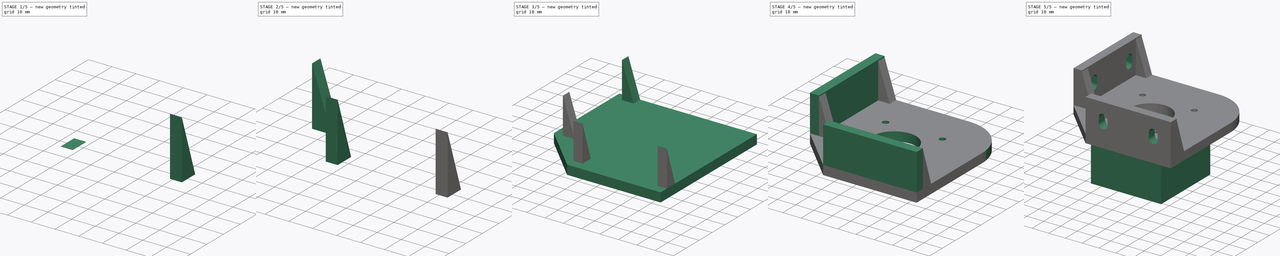
[diagram: build sequence overview — one tinted view per stage of 5, left to right]
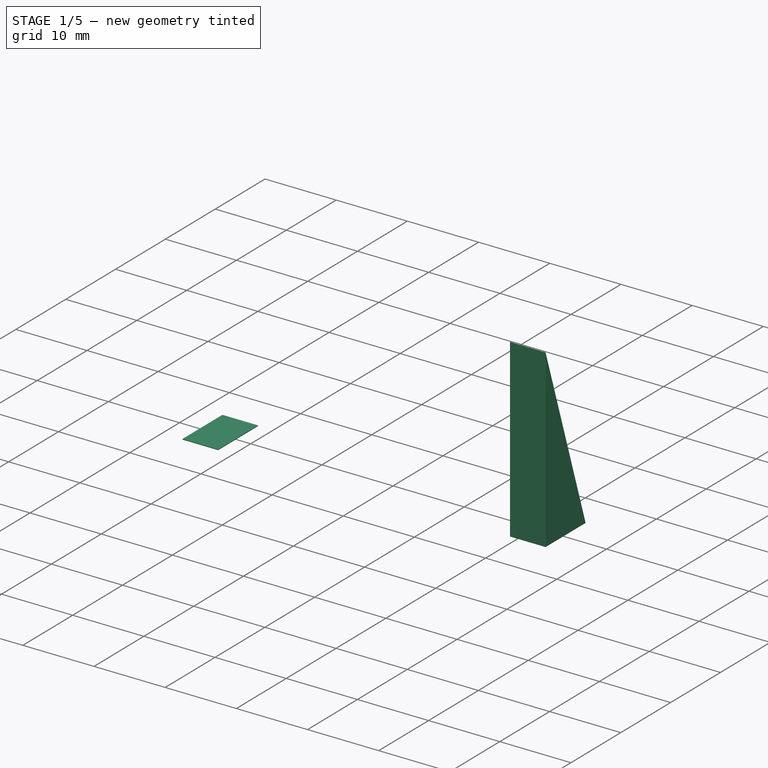
[diagram: stage 1 of 5 — iso view after this stage's code; geometry added in this stage tinted green]
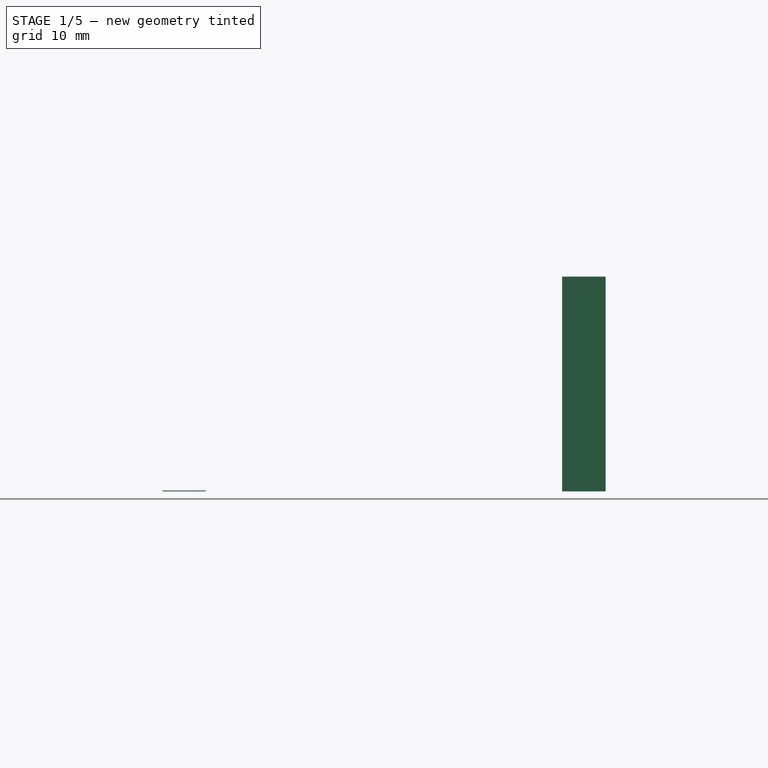
[diagram: stage 1 of 5 — front view after this stage's code; geometry added in this stage tinted green]
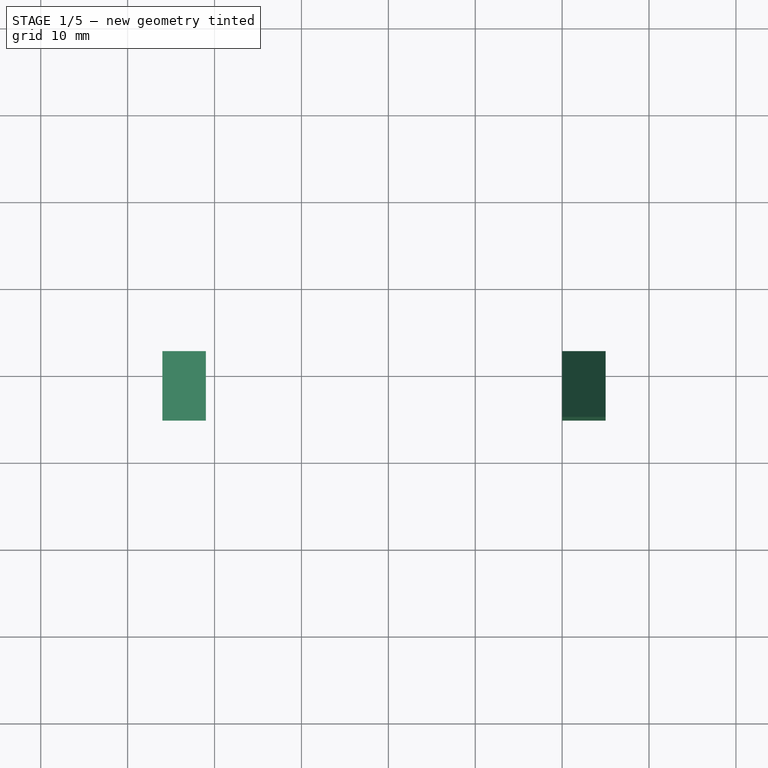
[diagram: stage 1 of 5 — top view after this stage's code; geometry added in this stage tinted green]
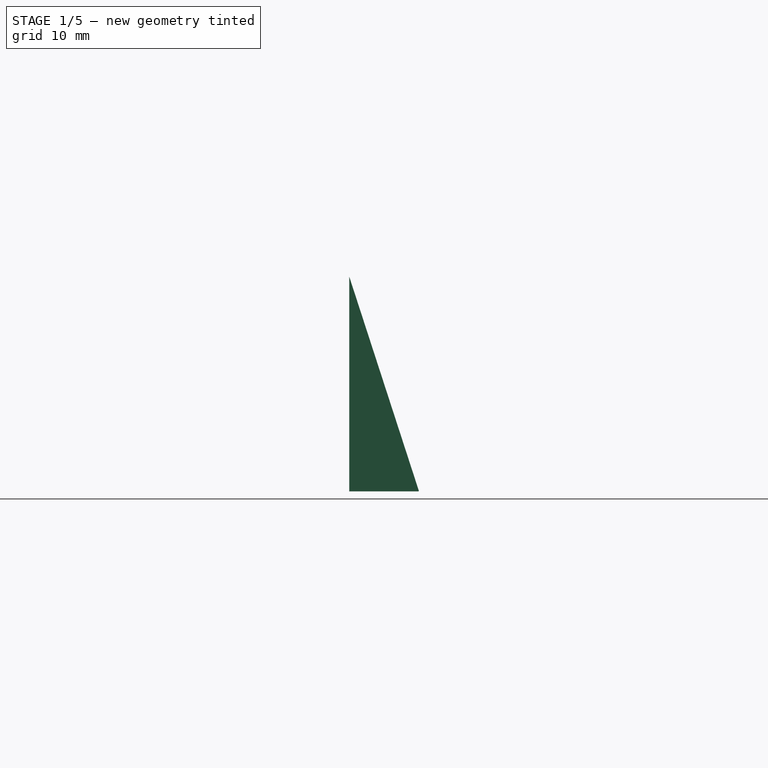
[diagram: stage 1 of 5 — right view after this stage's code; geometry added in this stage tinted green]
FCSTD DOCUMENT  (FreeCAD 0.16R6706 (Git))
Label: NemaMount
License: All rights reserved
LicenseURL: http://en.wikipedia.org/wiki/All_rights_reserved
objects: Sketcher::SketchObject×5, Part::Box×5, PartDesign::Draft×4, PartDesign::Pocket×3, PartDesign::Pad×2, PartDesign::Fillet×1
note: 25 computed .brp shape members not serialized (recipe doc carries the construction recipe); baked Part::Feature solids carry a one-line shape summary decoded from their .brp

FEATURE [Part::Box] Box003  label="support002"
  Height = 0.1
  Length = 5
  Placement = pos=(24,4.9,0) rot=(0,0,1;0rad)
  Width = 8
FEATURE [Part::Box] Box004  label="support003"
  Height = 0.1
  Length = 5
  Placement = pos=(70,4.9,0) rot=(0,0,1;0rad)
  Width = 8
FEATURE [PartDesign::Draft] Draft003
  Angle = 72
  Base = -> Box004 [Face6]
  NeutralPlane = -> Box004 [Face4]
  Placement = pos=(70,4.9,0) rot=(0,0,1;0rad)
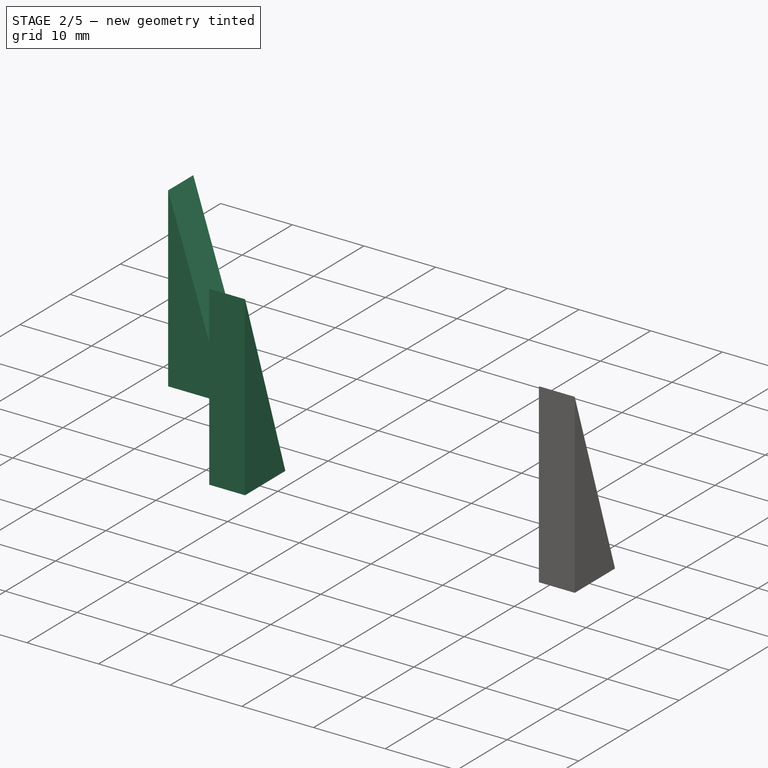
[diagram: stage 2 of 5 — iso view after this stage's code; geometry added in this stage tinted green]
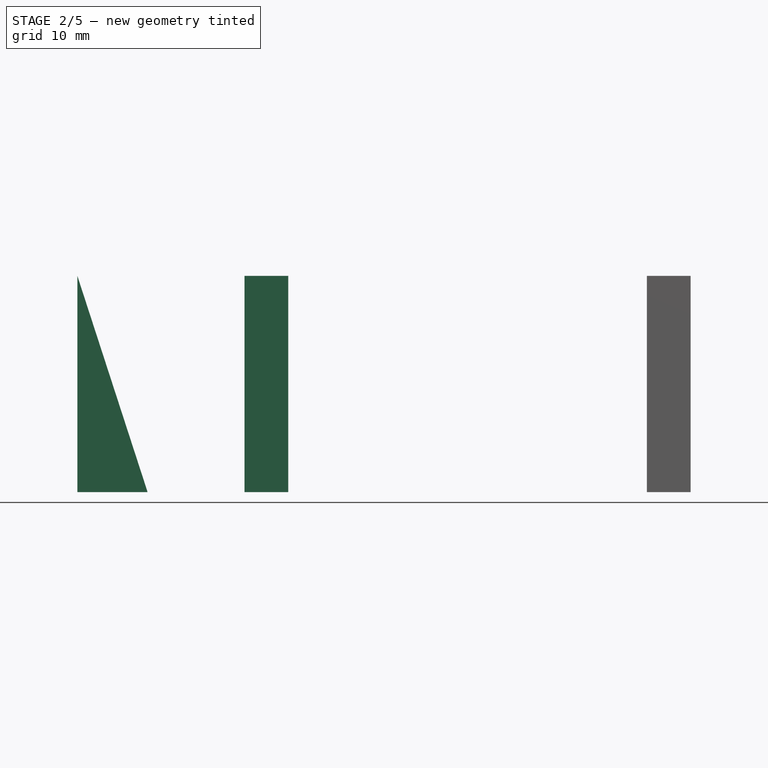
[diagram: stage 2 of 5 — front view after this stage's code; geometry added in this stage tinted green]
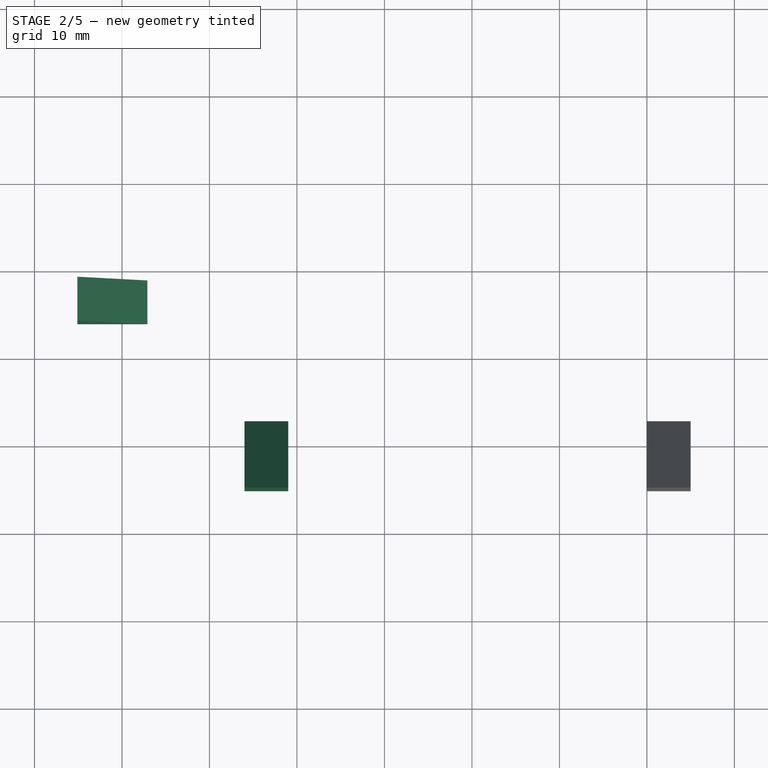
[diagram: stage 2 of 5 — top view after this stage's code; geometry added in this stage tinted green]
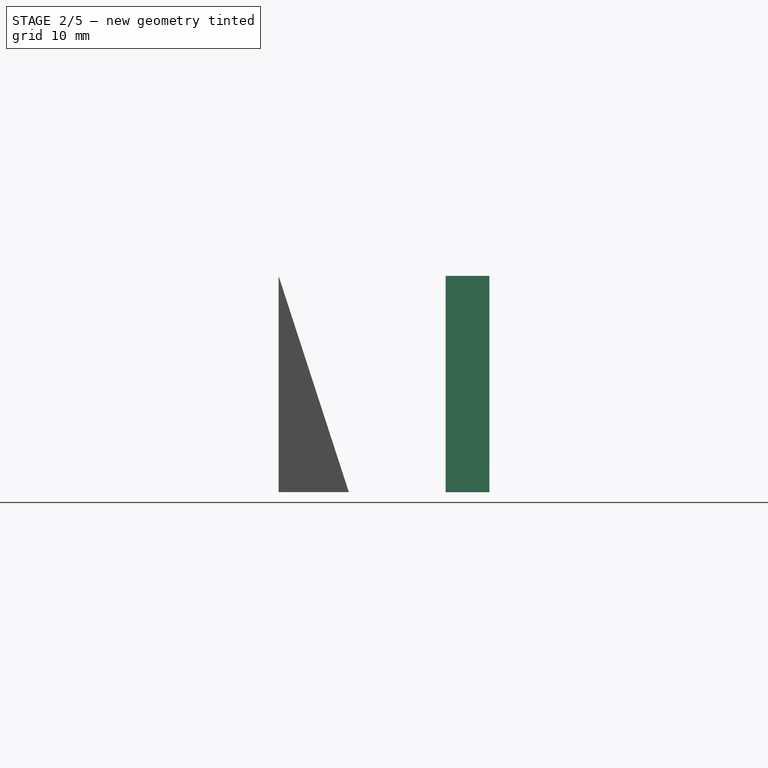
[diagram: stage 2 of 5 — right view after this stage's code; geometry added in this stage tinted green]
FEATURE [Part::Box] Box002  label="support001"
  Height = 0.1
  Length = 8
  Placement = pos=(4.9,24,0) rot=(0,0,1;0rad)
  Width = 5
FEATURE [PartDesign::Draft] Draft001
  Angle = 72
  Base = -> Box002 [Face6]
  NeutralPlane = -> Box002 [Face2]
  Placement = pos=(4.9,24,0) rot=(0,0,1;0rad)
FEATURE [PartDesign::Draft] Draft002
  Angle = 72
  Base = -> Box003 [Face6]
  NeutralPlane = -> Box003 [Face4]
  Placement = pos=(24,4.9,0) rot=(0,0,1;0rad)
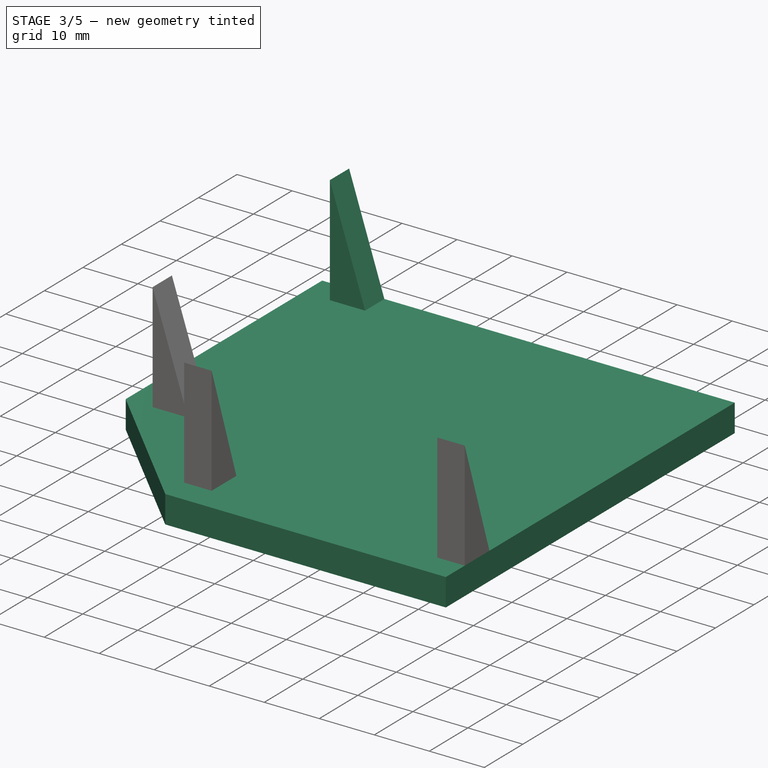
[diagram: stage 3 of 5 — iso view after this stage's code; geometry added in this stage tinted green]
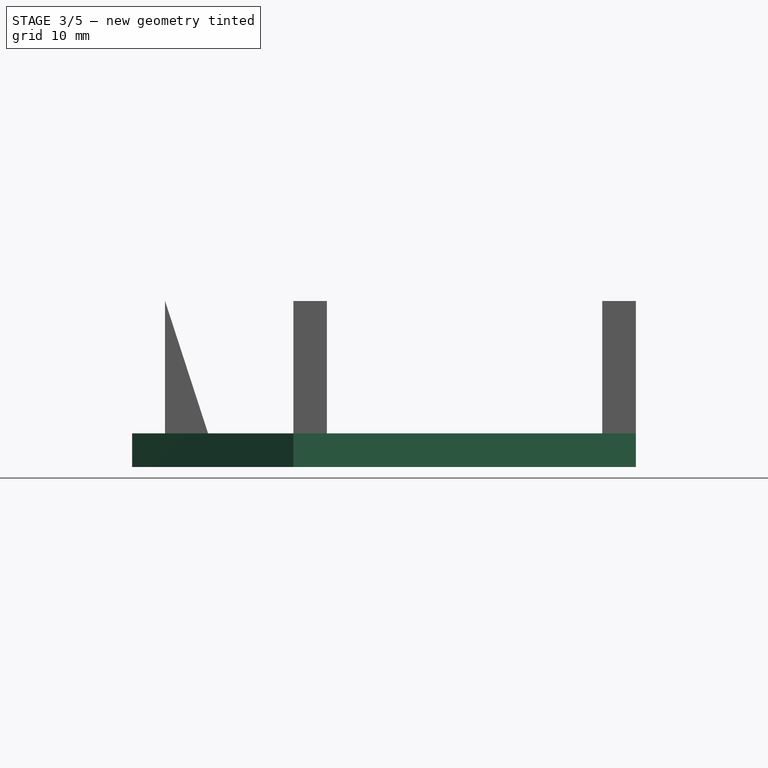
[diagram: stage 3 of 5 — front view after this stage's code; geometry added in this stage tinted green]
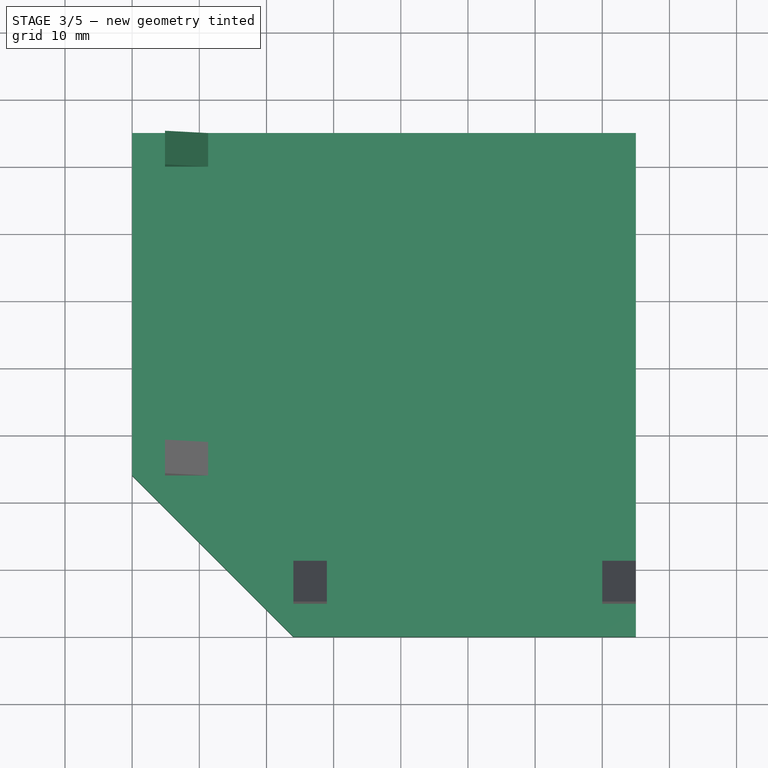
[diagram: stage 3 of 5 — top view after this stage's code; geometry added in this stage tinted green]
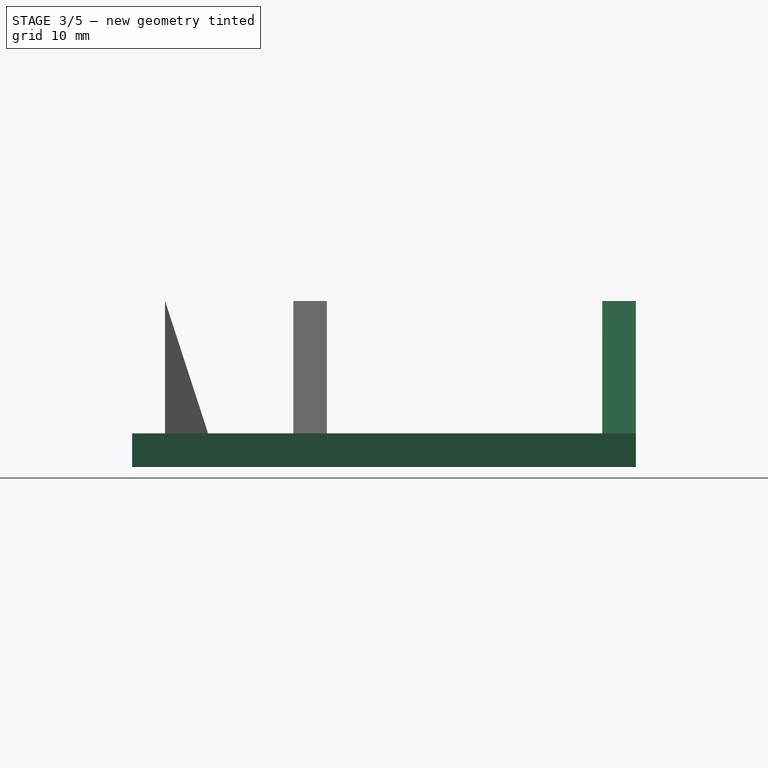
[diagram: stage 3 of 5 — right view after this stage's code; geometry added in this stage tinted green]
FEATURE [Sketcher::SketchObject] Sketch001
  sketch-geometry (5):
    g0: LineSegment StartX=75 StartY=0 StartZ=0 EndX=75 EndY=75 EndZ=0
    g1: LineSegment StartX=75 StartY=75 StartZ=0 EndX=0 EndY=75 EndZ=0
    g2: LineSegment StartX=0 StartY=75 StartZ=0 EndX=0 EndY=24 EndZ=0
    g3: LineSegment StartX=0 StartY=24 StartZ=0 EndX=24 EndY=0 EndZ=0
    g4: LineSegment StartX=24 StartY=0 StartZ=0 EndX=75 EndY=0 EndZ=0
  constraints (19):
    c: Coincident(g0,g1)
    c: Coincident(g1,g2)
    c: Coincident(g2,g3)
    c: Coincident(g3,g4)
    c: Coincident(g4,g0)
    c: DistanceX(g-2,g0) = 75
    c: DistanceX(g-2,g2) = 0
    c: DistanceY(g-1,g3) = 0
    c: DistanceY(g-1,g0) = 0
    c: DistanceX(g-2,g1) = 0
    c: DistanceY(g-1,g2) = 24
    c: DistanceX(g-2,g3) = 24
    c: Equal(g0,g1)
    c: Equal(g4,g2)
    c: Equal(g1,g0)
    c: Equal(g2,g4)
    c: DistanceY(g-1,g0) = 75
    c: DistanceY(g-1,g1) = 75
    c: DistanceX(g-2,g0) = 75
FEATURE [PartDesign::Pad] Pad
  Length = 5
  Length2 = 100
  Sketch = -> Sketch001
  Type = 0
FEATURE [Part::Box] Box001  label="support"
  Height = 0.1
  Length = 8
  Placement = pos=(4.9,70,0) rot=(0,0,1;0rad)
  Width = 5
FEATURE [PartDesign::Draft] Draft
  Angle = 72
  Base = -> Box001 [Face6]
  NeutralPlane = -> Box001 [Face2]
  Placement = pos=(4.9,70,0) rot=(0,0,1;0rad)
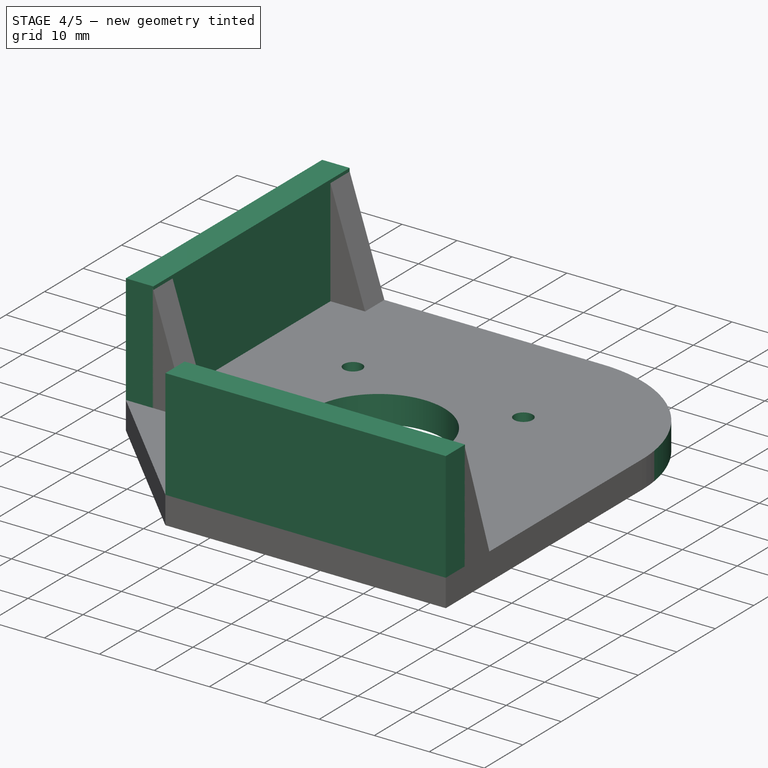
[diagram: stage 4 of 5 — iso view after this stage's code; geometry added in this stage tinted green]
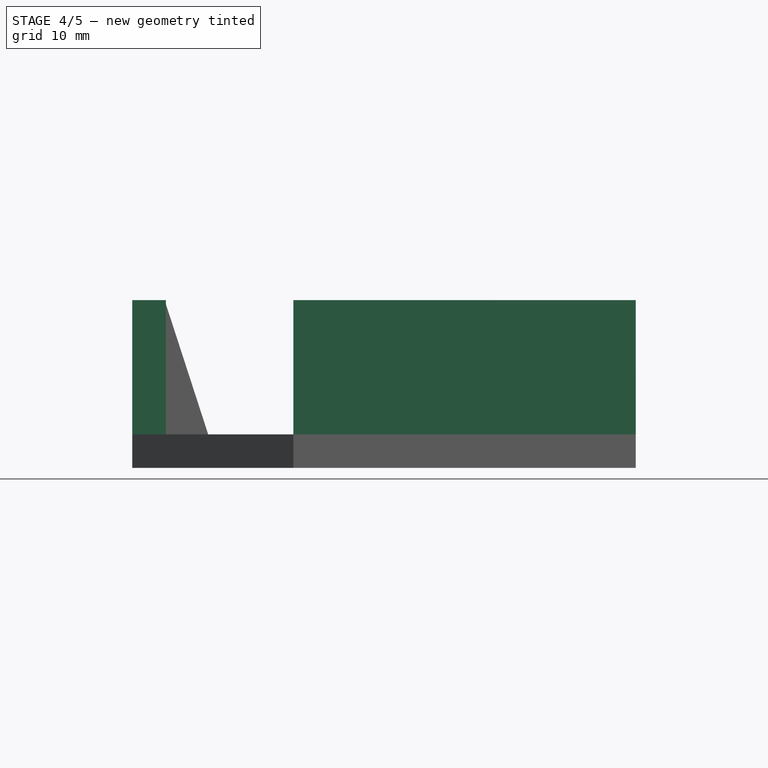
[diagram: stage 4 of 5 — front view after this stage's code; geometry added in this stage tinted green]
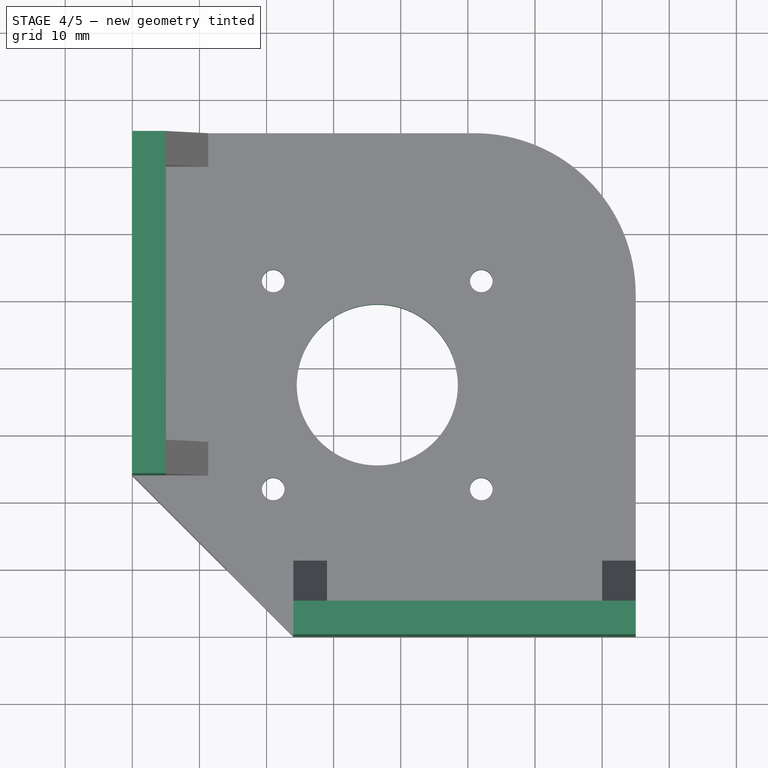
[diagram: stage 4 of 5 — top view after this stage's code; geometry added in this stage tinted green]
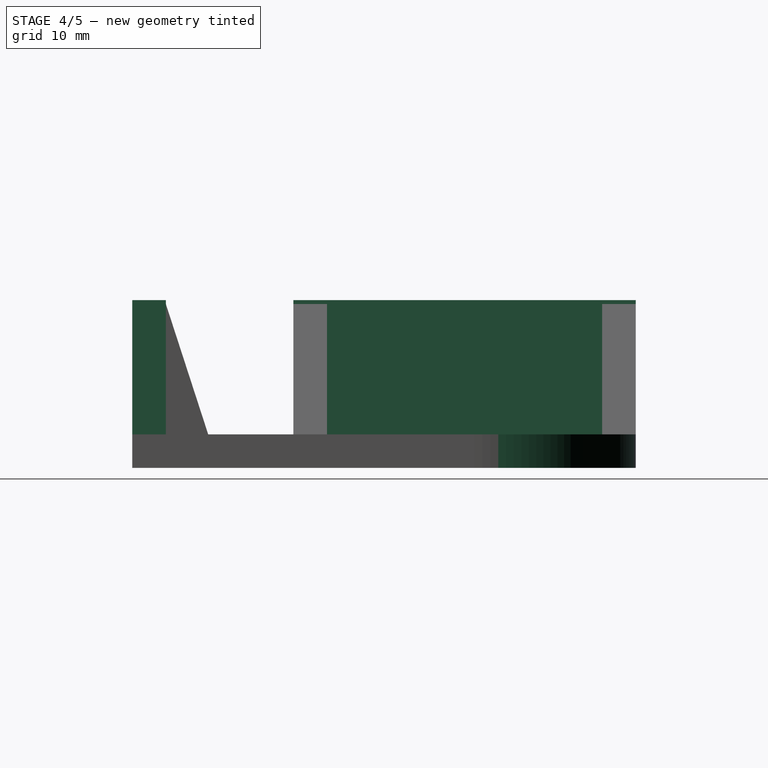
[diagram: stage 4 of 5 — right view after this stage's code; geometry added in this stage tinted green]
FEATURE [Sketcher::SketchObject] Sketch002
  Placement = pos=(0,0,0) rot=(1,0,0;3.14159rad)
  Support = -> Pad [Face6]
  sketch-geometry (5):
    g0: Circle CenterX=21 CenterY=-22 CenterZ=0 NormalX=0 NormalY=0 NormalZ=1 Radius=1.68
    g1: Circle CenterX=52 CenterY=-22 CenterZ=0 NormalX=0 NormalY=0 NormalZ=1 Radius=1.68
    g2: Circle CenterX=52 CenterY=-53 CenterZ=0 NormalX=0 NormalY=0 NormalZ=1 Radius=1.68
    g3: Circle CenterX=21 CenterY=-53 CenterZ=0 NormalX=0 NormalY=0 NormalZ=1 Radius=1.68
    g4: Circle CenterX=36.5 CenterY=-37.5 CenterZ=0 NormalX=0 NormalY=0 NormalZ=1 Radius=12
  constraints (15):
    c: Distance(g0,g1) = 31
    c: Distance(g2,g1) = 31
    c: Distance(g2,g3) = 31
    c: Distance(g0,g3) = 31
    c: DistanceY(g-1,g1) = -22
    c: DistanceY(g-1,g0) = -22
    c: DistanceX(g-2,g0) = 21
    c: DistanceX(g-2,g3) = 21
    c: Equal(g0,g1)
    c: Equal(g1,g2)
    c: Equal(g2,g3)
    c: Radius(g2) = 1.68
    c: Radius(g4) = 12
    c: DistanceX(g-2,g4) = 36.5
    c: DistanceY(g-1,g4) = -37.5
FEATURE [PartDesign::Pocket] Pocket
  Length = 5
  Sketch = -> Sketch002
  Type = 0
FEATURE [PartDesign::Fillet] Fillet
  Base = -> Pocket [Edge2]
  Radius = 24
FEATURE [PartDesign::Pad] Pad001
  Length = 20
  Length2 = 100
  Sketch = -> Sketch
  Type = 0
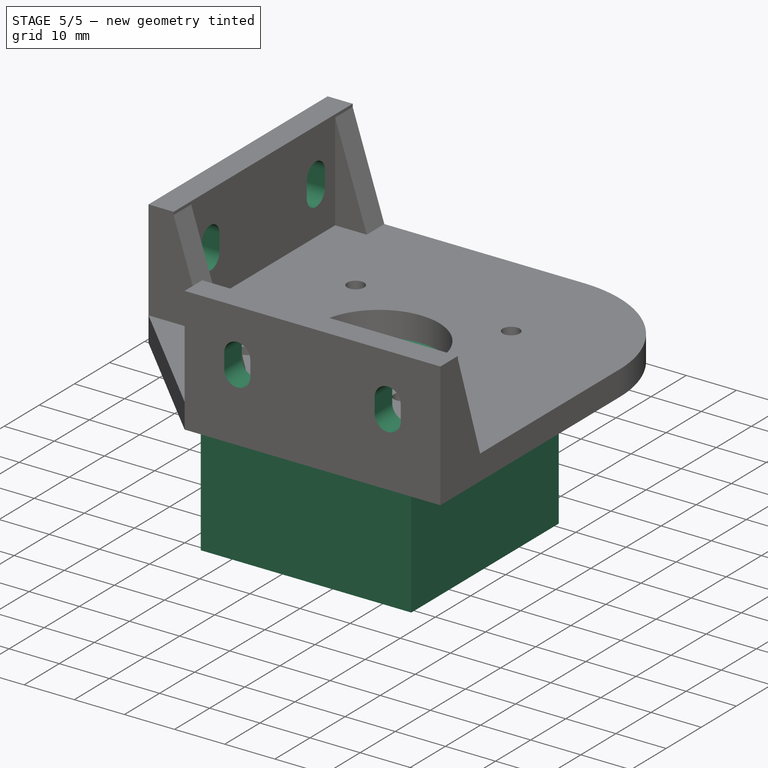
[diagram: stage 5 of 5 — iso view after this stage's code; geometry added in this stage tinted green]
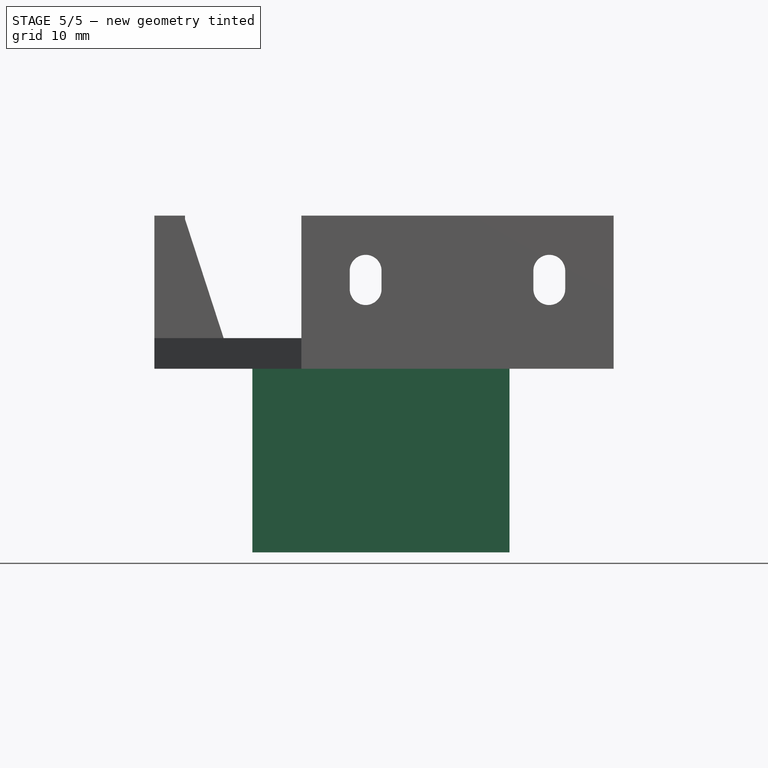
[diagram: stage 5 of 5 — front view after this stage's code; geometry added in this stage tinted green]
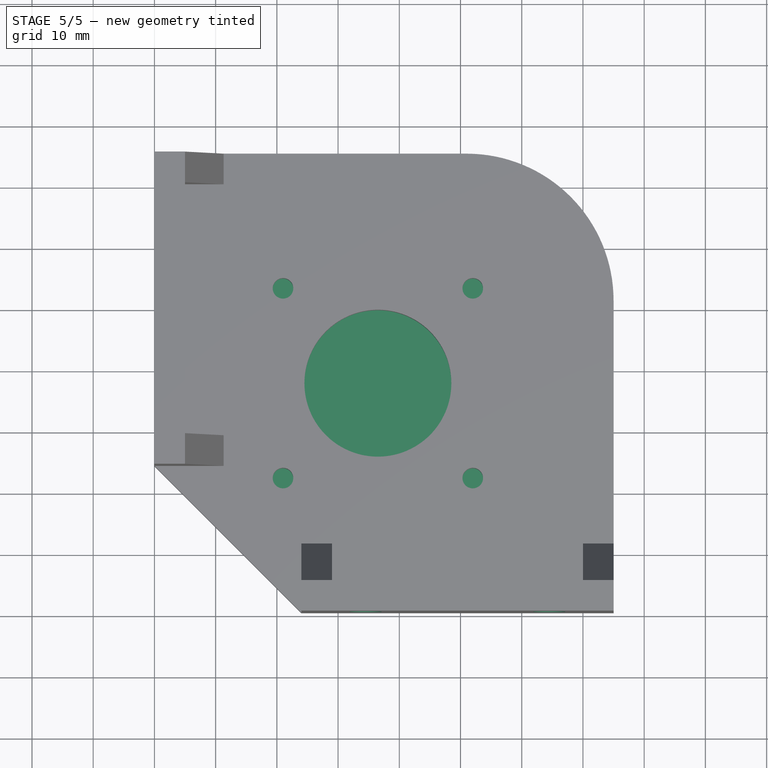
[diagram: stage 5 of 5 — top view after this stage's code; geometry added in this stage tinted green]
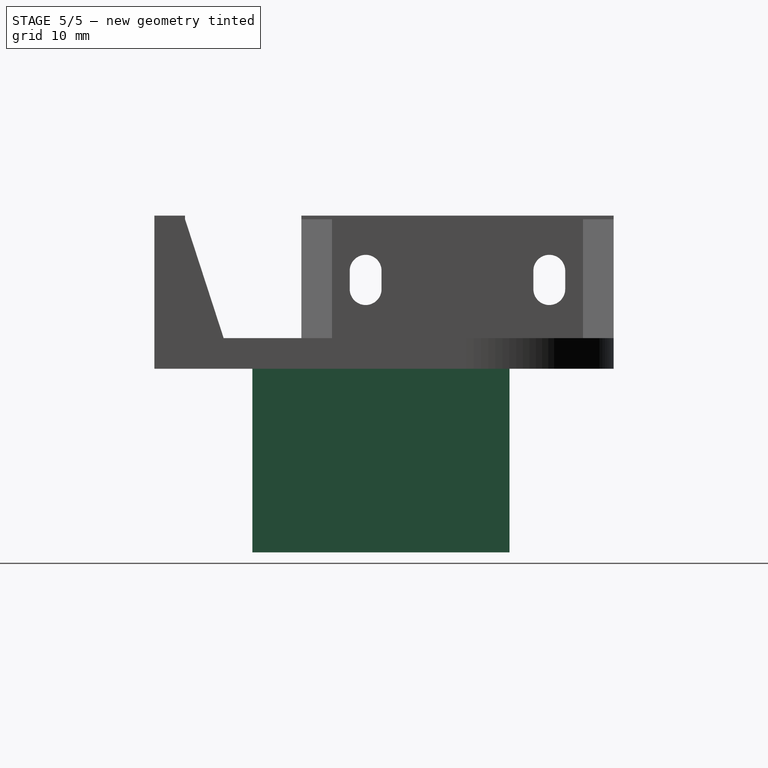
[diagram: stage 5 of 5 — right view after this stage's code; geometry added in this stage tinted green]
FEATURE [Sketcher::SketchObject] Sketch  label="walls"
  Placement = pos=(0,0,5) rot=(0,0,1;0rad)
  Support = -> Fillet [Face5]
  sketch-geometry (8):
    g0: LineSegment StartX=5 StartY=75 StartZ=0 EndX=0 EndY=75 EndZ=0
    g1: LineSegment StartX=0 StartY=75 StartZ=0 EndX=0 EndY=24 EndZ=0
    g2: LineSegment StartX=0 StartY=24 StartZ=0 EndX=5 EndY=24 EndZ=0
    g3: LineSegment StartX=5 StartY=24 StartZ=0 EndX=5 EndY=75 EndZ=0
    g4: LineSegment StartX=24 StartY=5 StartZ=0 EndX=75 EndY=5 EndZ=0
    g5: LineSegment StartX=75 StartY=5 StartZ=0 EndX=75 EndY=0 EndZ=0
    g6: LineSegment StartX=75 StartY=0 StartZ=0 EndX=24 EndY=0 EndZ=0
    g7: LineSegment StartX=24 StartY=0 StartZ=0 EndX=24 EndY=5 EndZ=0
  constraints (24):
    c: Coincident(g0,g1)
    c: Coincident(g1,g2)
    c: Coincident(g2,g3)
    c: Coincident(g3,g0)
    c: Horizontal(g0)
    c: Horizontal(g2)
    c: Vertical(g1)
    c: Vertical(g3)
    c: Coincident(g4,g5)
    c: Coincident(g5,g6)
    c: Coincident(g6,g7)
    c: Coincident(g7,g4)
    c: Horizontal(g4)
    c: Horizontal(g6)
    c: Vertical(g5)
    c: Vertical(g7)
    c: Distance(g0) = 5
    c: Equal(g5,g0)
    c: DistanceX(g-2,g6) = 24
    c: DistanceY(g-1,g1) = 24
    c: DistanceX(g-2,g0) = 0
    c: DistanceY(g-1,g5) = 0
    c: DistanceY(g-1,g0) = 75
    c: DistanceX(g-2,g5) = 75
FEATURE [Part::Box] Box  label="nema"
  Height = 30
  Length = 42
  Placement = pos=(16,16,-30) rot=(0,0,1;0rad)
  Width = 42
FEATURE [Sketcher::SketchObject] Sketch004  label="mnt holes 2"
  Placement = pos=(5,0,0) rot=(0.57735,0.57735,0.57735;2.0944rad)
  Support = -> Pad001 [Face18]
  sketch-geometry (8):
    g0: ArcOfCircle CenterX=64.5 CenterY=16 CenterZ=0 NormalX=0 NormalY=0 NormalZ=1 Radius=2.6 StartAngle=-7e-12 EndAngle=3.14159
    g1: ArcOfCircle CenterX=64.5 CenterY=13 CenterZ=0 NormalX=0 NormalY=0 NormalZ=1 Radius=2.6 StartAngle=3.14159 EndAngle=6.28319
    g2: LineSegment StartX=61.9 StartY=16 StartZ=0 EndX=61.9 EndY=13 EndZ=0
    g3: LineSegment StartX=67.1 StartY=16 StartZ=0 EndX=67.1 EndY=13 EndZ=0
    g4: ArcOfCircle CenterX=34.5 CenterY=16 CenterZ=0 NormalX=0 NormalY=0 NormalZ=1 Radius=2.6 StartAngle=0 EndAngle=3.14159
    g5: LineSegment StartX=37.1 StartY=16 StartZ=0 EndX=37.1 EndY=13 EndZ=0
    g6: LineSegment StartX=31.9 StartY=16 StartZ=0 EndX=31.9 EndY=13 EndZ=0
    g7: ArcOfCircle CenterX=34.5 CenterY=13 CenterZ=0 NormalX=0 NormalY=0 NormalZ=1 Radius=2.6 StartAngle=3.14159 EndAngle=6.28319
  constraints (20):
    c: Tangent(g0,g3) = 1.5708
    c: Tangent(g0,g2) = -1.5708
    c: Tangent(g2,g1) = -1.5708
    c: Tangent(g3,g1) = 1.5708
    c: Vertical(g2)
    c: Equal(g0,g1)
    c: Distance(g3) = 3
    c: Radius(g0) = 2.6
    c: DistanceY(g-1,g1) = 13
    c: Tangent(g4,g5) = 1.5708
    c: Tangent(g4,g6) = -1.5708
    c: Tangent(g6,g7) = -1.5708
    c: Tangent(g5,g7) = 1.5708
    c: Vertical(g6)
    c: Equal(g4,g7)
    c: Equal(g3,g5) = 5
    c: Equal(g0,g4) = 2.6
    c: DistanceY(g-1,g7) = 13
    c: Distance(g0,g4) = 30
    c: DistanceX(g-2,g4) = 34.5
FEATURE [PartDesign::Pocket] Pocket001
  Length = 5
  Sketch = -> Sketch004
  Type = 0
FEATURE [Sketcher::SketchObject] Sketch003  label="mnt holes"
  Placement = pos=(0,5,0) rot=(0,0.707107,0.707107;3.14159rad)
  Support = -> Pocket001 [Face21]
  sketch-geometry (8):
    g0: ArcOfCircle CenterX=-64.5 CenterY=16 CenterZ=0 NormalX=0 NormalY=0 NormalZ=1 Radius=2.6 StartAngle=3.6e-11 EndAngle=3.14159
    g1: ArcOfCircle CenterX=-64.5 CenterY=13 CenterZ=0 NormalX=0 NormalY=0 NormalZ=1 Radius=2.6 StartAngle=3.14159 EndAngle=6.28319
    g2: LineSegment StartX=-67.1 StartY=16 StartZ=0 EndX=-67.1 EndY=13 EndZ=0
    g3: LineSegment StartX=-61.9 StartY=16 StartZ=0 EndX=-61.9 EndY=13 EndZ=0
    g4: LineSegment StartX=-31.9 StartY=16 StartZ=0 EndX=-31.9 EndY=13 EndZ=0
    g5: ArcOfCircle CenterX=-34.5 CenterY=16 CenterZ=0 NormalX=0 NormalY=0 NormalZ=1 Radius=2.6 StartAngle=0 EndAngle=3.14159
    g6: LineSegment StartX=-37.1 StartY=16 StartZ=0 EndX=-37.1 EndY=13 EndZ=0
    g7: ArcOfCircle CenterX=-34.5 CenterY=13 CenterZ=0 NormalX=0 NormalY=0 NormalZ=1 Radius=2.6 StartAngle=3.14159 EndAngle=6.28319
  constraints (20):
    c: Tangent(g0,g3) = 1.5708
    c: Tangent(g0,g2) = -1.5708
    c: Tangent(g2,g1) = -1.5708
    c: Tangent(g3,g1) = 1.5708
    c: Vertical(g2)
    c: Equal(g0,g1)
    c: Radius(g0) = 2.6
    c: Distance(g3) = 3
    c: DistanceY(g-1,g1) = 13
    c: Tangent(g5,g4) = 1.5708
    c: Tangent(g5,g6) = -1.5708
    c: Tangent(g6,g7) = -1.5708
    c: Tangent(g4,g7) = 1.5708
    c: Vertical(g6)
    c: Equal(g5,g7)
    c: Equal(g0,g5) = 2.6
    c: Equal(g3,g4) = 5
    c: DistanceY(g-1,g7) = 13
    c: Distance(g7,g1) = 30
    c: DistanceX(g-2,g5) = -34.5
FEATURE [PartDesign::Pocket] Pocket002
  Length = 5
  Sketch = -> Sketch003
  Type = 0
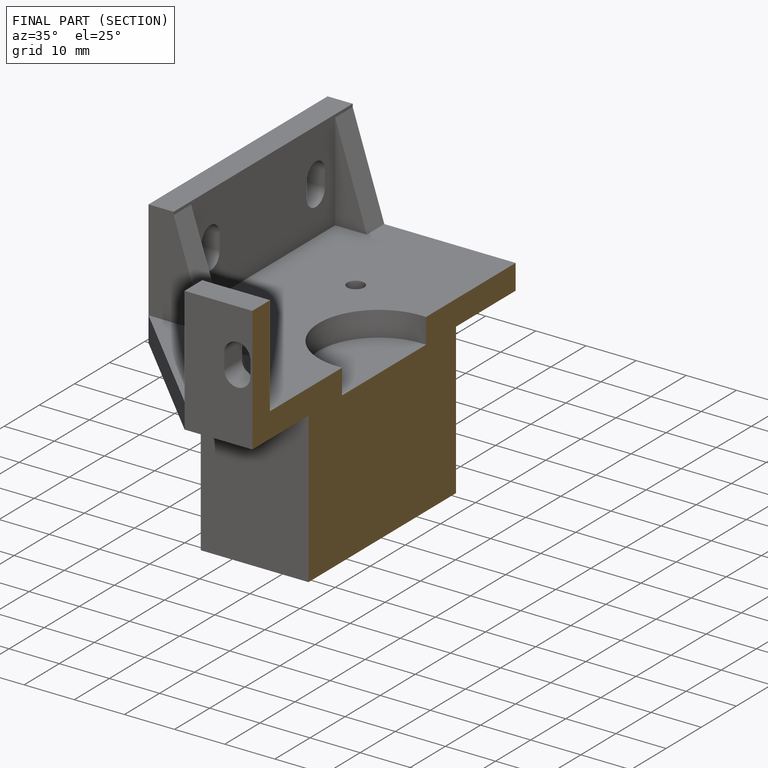
[diagram: finished part — half-section view (interior)]
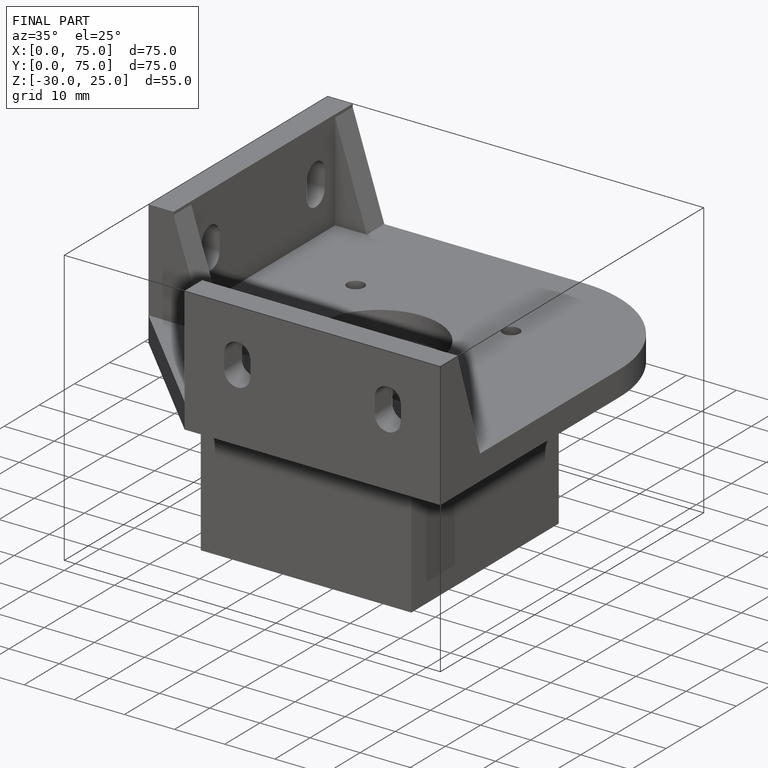
[diagram: finished part — iso view with bounding-box wireframe]
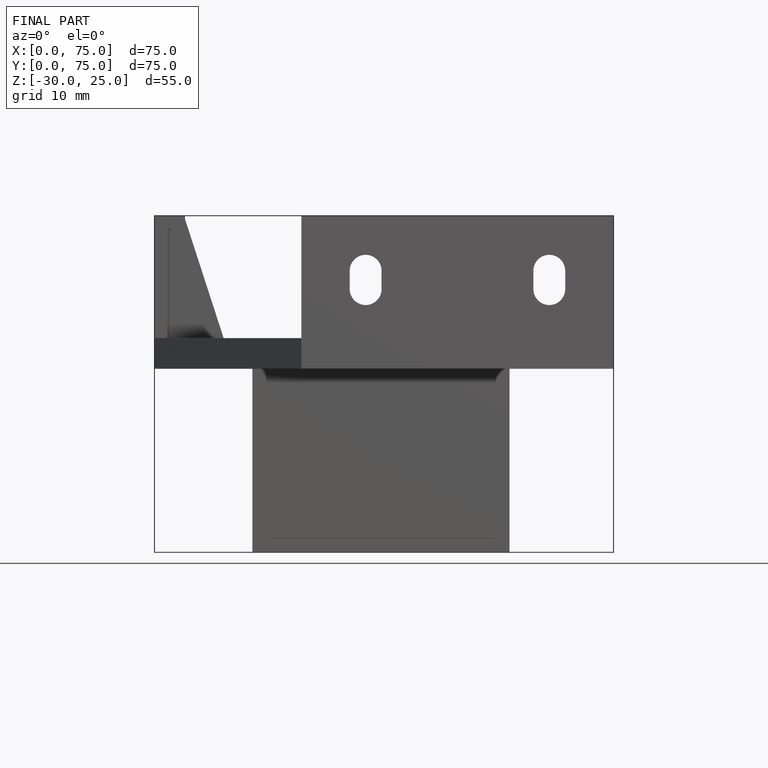
[diagram: finished part — front view with bounding-box wireframe]
